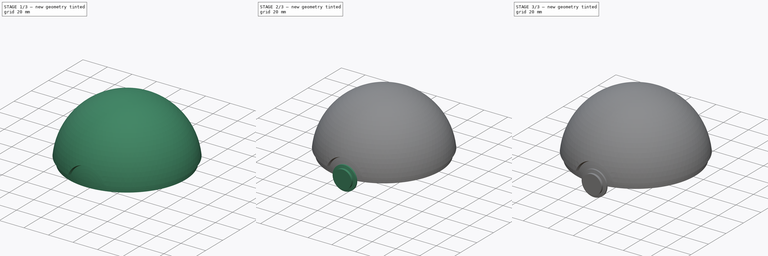
[diagram: build sequence overview — one tinted view per stage of 3, left to right]
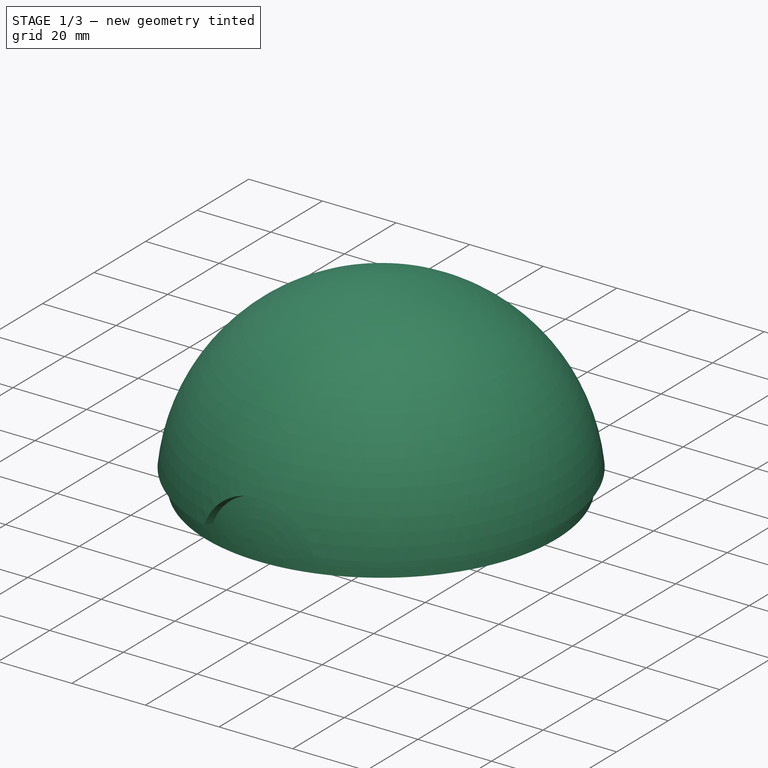
[diagram: stage 1 of 3 — iso view after this stage's code; geometry added in this stage tinted green]
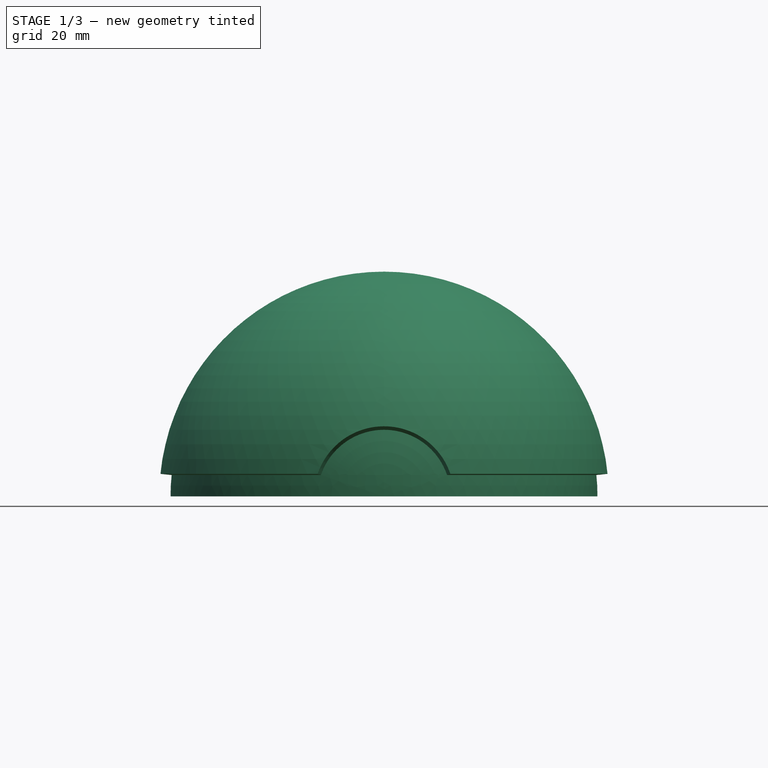
[diagram: stage 1 of 3 — front view after this stage's code; geometry added in this stage tinted green]
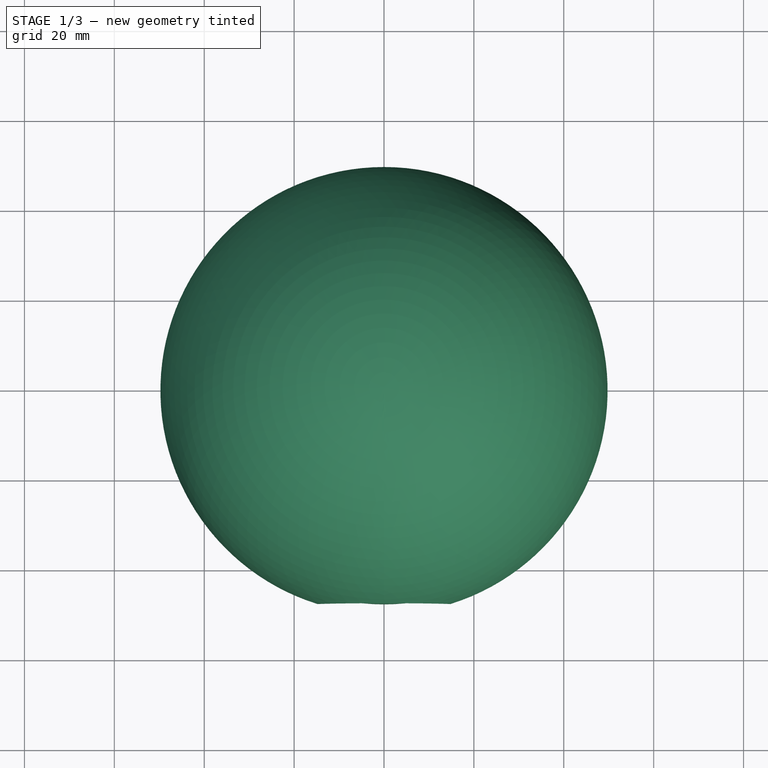
[diagram: stage 1 of 3 — top view after this stage's code; geometry added in this stage tinted green]
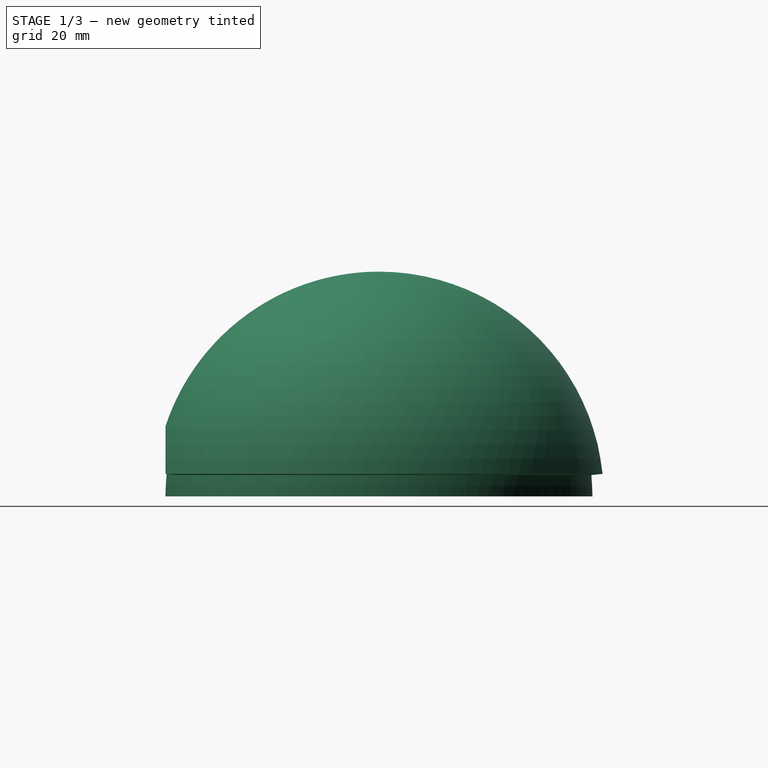
[diagram: stage 1 of 3 — right view after this stage's code; geometry added in this stage tinted green]
FCSTD DOCUMENT  (FreeCAD 0.20R29410 (Git))
Label: pokeball
License: All rights reserved
LicenseURL: http://en.wikipedia.org/wiki/All_rights_reserved
objects: Sketcher::SketchObject×5, PartDesign::Revolution×2, PartDesign::Pad×2, PartDesign::Groove×1, PartDesign::Body×1
note: 16 computed .brp shape members not serialized (recipe doc carries the construction recipe); baked Part::Feature solids carry a one-line shape summary decoded from their .brp

FEATURE [Sketcher::SketchObject] Sketch
  FullyConstrained = true
  MapMode = 5
  Placement = pos=(0,0,0) rot=(0.57735,0.57735,0.57735;2.0944rad)
  Support = -> [YZ_Plane]
  sketch-geometry (7):
    g0: ArcOfCircle CenterX=0 CenterY=0 CenterZ=0 NormalX=0 NormalY=0 NormalZ=1 AngleXU=0 Radius=50 StartAngle=1.5708 EndAngle=3.04143
    g1: ArcOfCircle CenterX=0 CenterY=0 CenterZ=0 NormalX=0 NormalY=0 NormalZ=1 AngleXU=0 Radius=45 StartAngle=1.5708 EndAngle=3.14159
    g2: ArcOfCircle CenterX=0 CenterY=0 CenterZ=0 NormalX=0 NormalY=0 NormalZ=1 AngleXU=0 Radius=47.5 StartAngle=3.04143 EndAngle=3.14159
    g3: LineSegment StartX=-45 StartY=5.8e-15 StartZ=0 EndX=-47.5 EndY=5.8e-15 EndZ=0
    g4: LineSegment StartX=-47.2619 StartY=4.75 StartZ=0 EndX=-49.7494 EndY=5 EndZ=0
    g5: LineSegment StartX=3.1e-15 StartY=50 StartZ=0 EndX=3.1e-15 EndY=45 EndZ=0
    g6: LineSegment StartX=0 StartY=0 StartZ=0 EndX=-49.7494 EndY=5 EndZ=0
  constraints (20):
    c: Coincident(g0,g-1)
    c: Diameter(g0) = 100
    c: Coincident(g1,g0)
    c: Diameter(g1) = 90
    c: Coincident(g2,g0)
    c: Diameter(g2) = 95
    c: DistanceY(g-1,g4) = 5
    c: Coincident(g0,g4)
    c: PointOnObject(g3,g-1)
    c: Horizontal(g3)
    c: Coincident(g4,g2)
    c: Vertical(g5)
    c: DistanceX(g5,g-1) = 0
    c: Coincident(g2,g3)
    c: Coincident(g1,g3)
    c: Coincident(g0,g5)
    c: Coincident(g1,g5)
    c: Coincident(g6,g0)
    c: Coincident(g6,g0)
    c: PointOnObject(g2,g6)
FEATURE [PartDesign::Revolution] Revolution
  Angle = 360
  Axis = (-2e-16,3e-16,1)
  Base = (0,0,0)
  Placement = pos=(0,0,0) rot=(0.57735,0.57735,0.57735;2.0944rad)
  Profile = -> Sketch
  ReferenceAxis = -> Sketch [V_Axis]
  Refine = true
FEATURE [Sketcher::SketchObject] Sketch001
  ExternalGeometry = -> [Revolution]
  FullyConstrained = true
  MapMode = 5
  Placement = pos=(0,0,0) rot=(0.57735,0.57735,0.57735;2.0944rad)
  Support = -> [YZ_Plane]
  sketch-geometry (4):
    g0: LineSegment StartX=-45.1316 StartY=14.8118 StartZ=0 EndX=-47.5074 EndY=15.59 EndZ=0
    g1: ArcOfCircle CenterX=0 CenterY=0 CenterZ=0 NormalX=0 NormalY=0 NormalZ=1 AngleXU=0 Radius=47.5 StartAngle=2.82448 EndAngle=3.14159
    g2: ArcOfCircle CenterX=0 CenterY=0 CenterZ=0 NormalX=0 NormalY=0 NormalZ=1 AngleXU=0 Radius=50 StartAngle=2.82451 EndAngle=3.14159
    g3: LineSegment StartX=-47.5 StartY=2.69e-14 StartZ=0 EndX=-50 EndY=6.1e-15 EndZ=0
  constraints (11):
    c: PointOnObject(g0,g-3)
    c: Coincident(g1,g-5)
    c: Coincident(g1,g-5)
    c: Distance(g1,g1) = 15
    c: Coincident(g2,g0)
    c: PointOnObject(g2,g-1)
    c: Coincident(g2,g-5)
    c: Coincident(g3,g1)
    c: Coincident(g3,g2)
    c: Coincident(g0,g1)
    c: DistanceY(g-1,g0) = 15.59
FEATURE [PartDesign::Groove] Groove
  Angle = 142.5
  Axis = (1e-16,1,-1e-16)
  Base = (0,0,0)
  BaseFeature = -> Revolution
  Midplane = true
  Placement = pos=(0,0,0) rot=(0.57735,0.57735,0.57735;2.0944rad)
  Profile = -> Sketch001
  ReferenceAxis = -> Y_Axis
  Refine = true
  Reversed = true
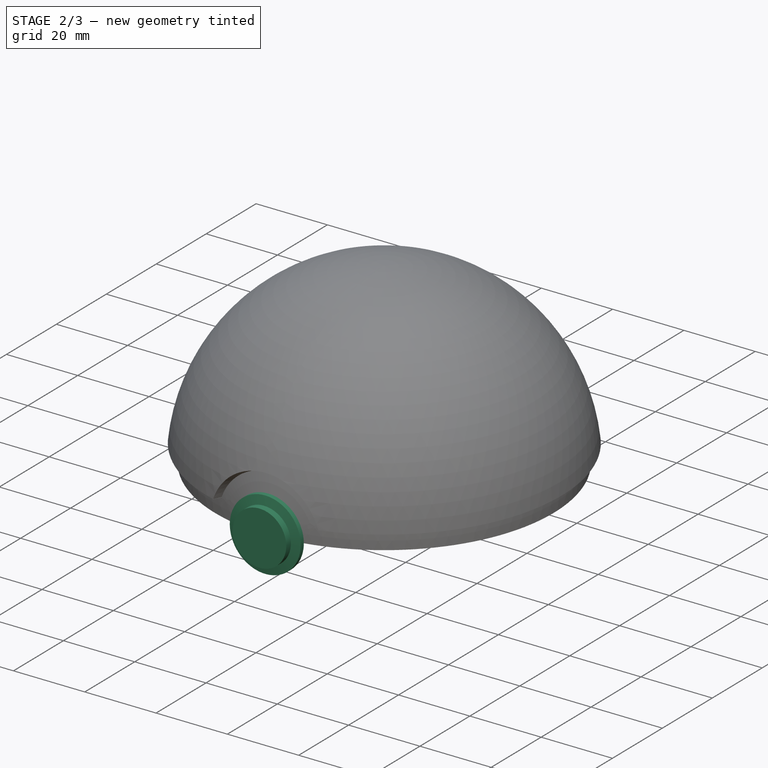
[diagram: stage 2 of 3 — iso view after this stage's code; geometry added in this stage tinted green]
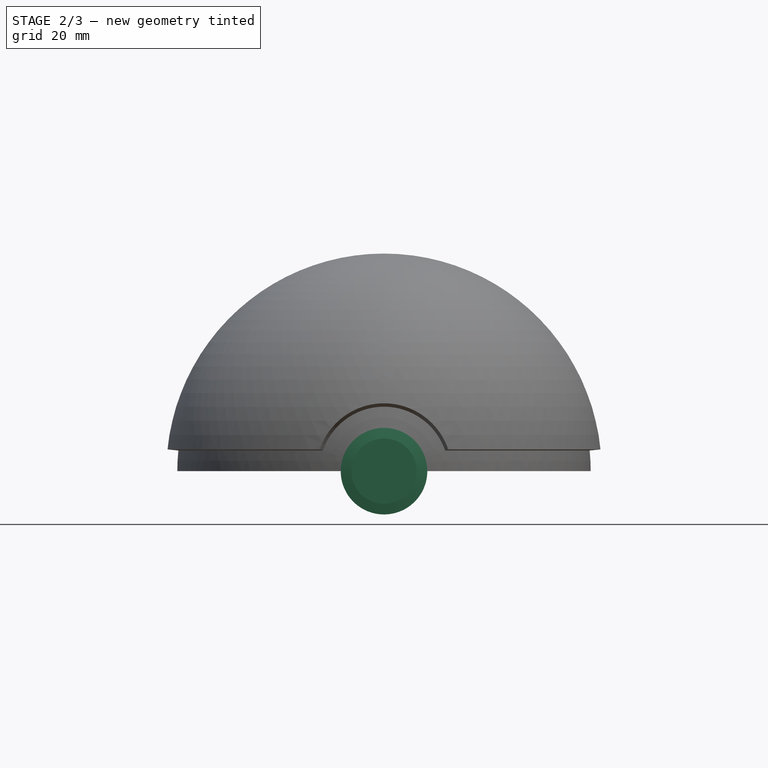
[diagram: stage 2 of 3 — front view after this stage's code; geometry added in this stage tinted green]
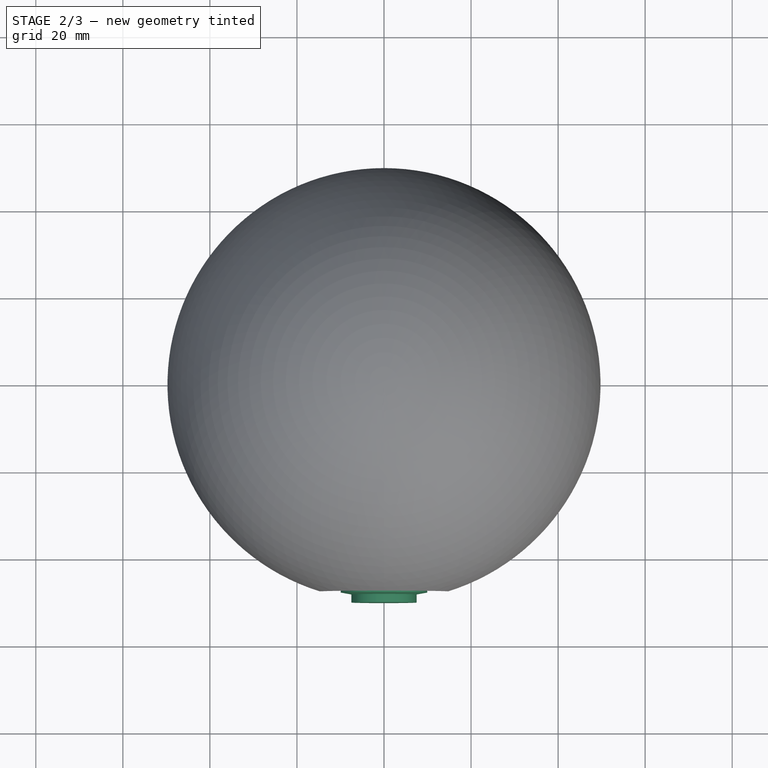
[diagram: stage 2 of 3 — top view after this stage's code; geometry added in this stage tinted green]
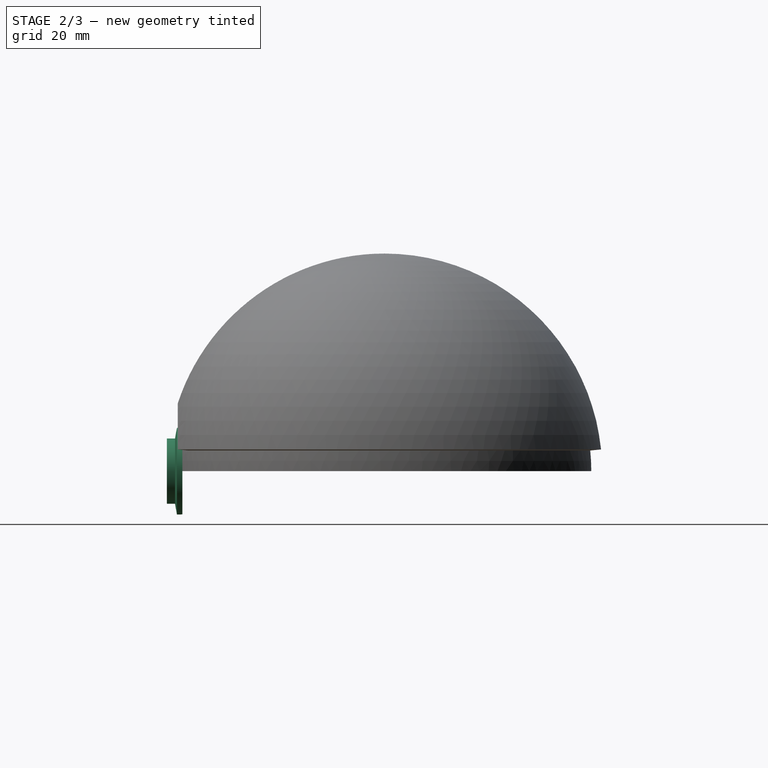
[diagram: stage 2 of 3 — right view after this stage's code; geometry added in this stage tinted green]
FEATURE [Sketcher::SketchObject] Sketch002
  ExternalGeometry = -> [Groove]
  FullyConstrained = true
  MapMode = 5
  Placement = pos=(0,0,0) rot=(0.57735,0.57735,0.57735;2.0944rad)
  Support = -> [YZ_Plane]
  sketch-geometry (6):
    g0: ArcOfCircle CenterX=0 CenterY=0 CenterZ=0 NormalX=0 NormalY=0 NormalZ=1 AngleXU=0 Radius=47.5 StartAngle=2.93068 EndAngle=3.14159
    g1: LineSegment StartX=-47.5 StartY=-1.53e-14 StartZ=0 EndX=-50 EndY=0 EndZ=0
    g2: LineSegment StartX=-46.4474 StartY=9.94444 StartZ=0 EndX=-47.6974 EndY=9.94444 EndZ=0
    g3: ArcOfCircle CenterX=0 CenterY=0 CenterZ=0 NormalX=0 NormalY=0 NormalZ=1 AngleXU=0 Radius=48.723 StartAngle=2.93605 EndAngle=2.98705
    g4: LineSegment StartX=-48.1423 StartY=7.5 StartZ=0 EndX=-50 EndY=7.5 EndZ=0
    g5: LineSegment StartX=-50 StartY=7.5 StartZ=0 EndX=-50 EndY=0 EndZ=0
  constraints (17):
    c: Coincident(g0,g-3)
    c: Coincident(g0,g-3)
    c: Distance(g0,g0) = 10
    c: Coincident(g1,g0)
    c: PointOnObject(g1,g-1)
    c: Coincident(g2,g0)
    c: Horizontal(g2)
    c: DistanceX(g2,g0) = 1.25
    c: DistanceX(g1,g0) = 2.5
    c: Coincident(g3,g2)
    c: Coincident(g3,g0)
    c: Horizontal(g4)
    c: Coincident(g5,g4)
    c: Coincident(g5,g1)
    c: Vertical(g5)
    c: DistanceY(g1,g4) = 7.5
    c: Coincident(g3,g4)
FEATURE [PartDesign::Revolution] Revolution001
  Angle = 360
  Axis = (1e-16,1,-1e-16)
  Base = (0,0,0)
  BaseFeature = -> Groove
  Placement = pos=(0,0,0) rot=(0.57735,0.57735,0.57735;2.0944rad)
  Profile = -> Sketch002
  ReferenceAxis = -> Y_Axis
  Refine = true
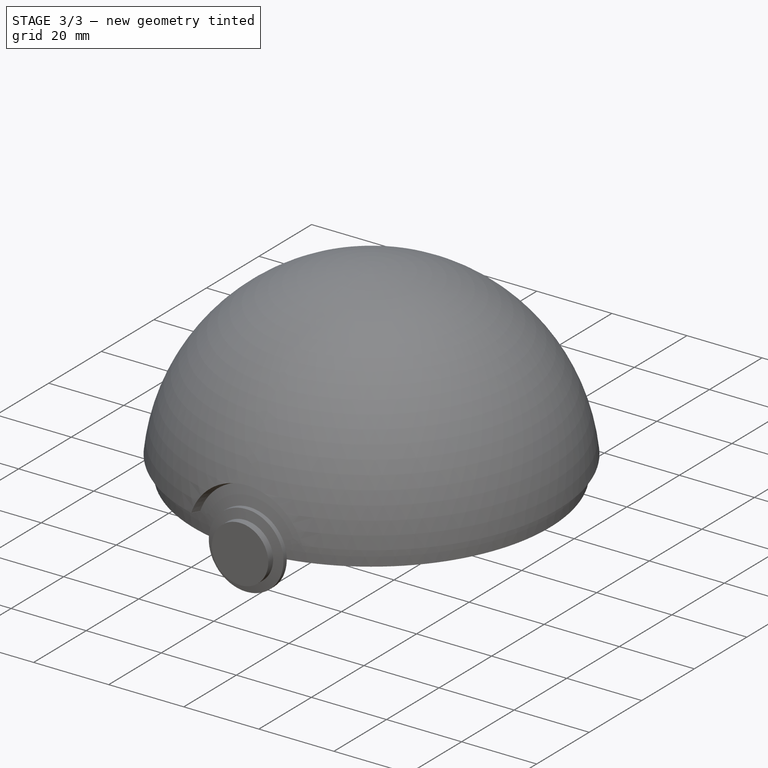
[diagram: stage 3 of 3 — iso view after this stage's code; geometry added in this stage tinted green]
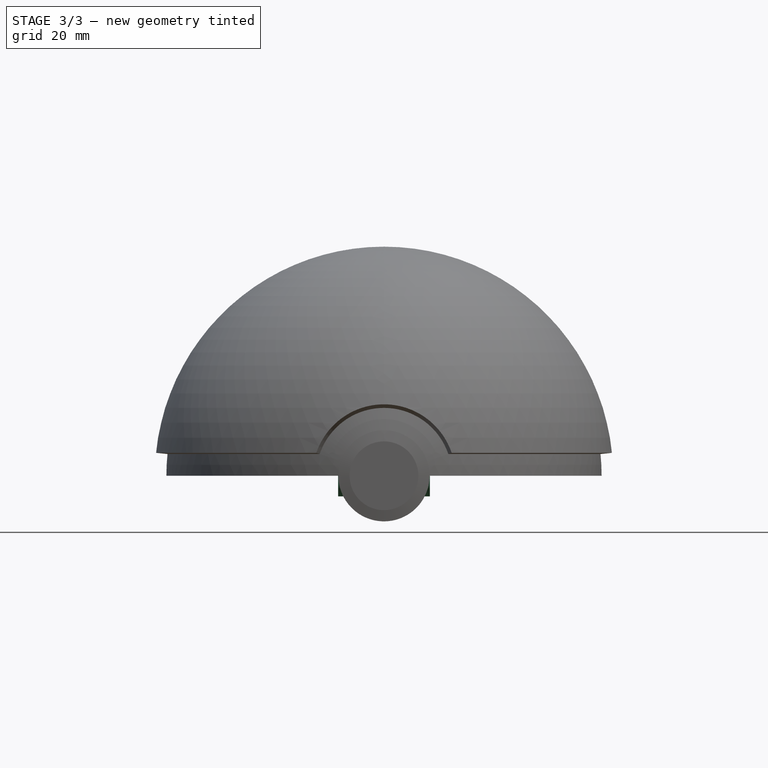
[diagram: stage 3 of 3 — front view after this stage's code; geometry added in this stage tinted green]
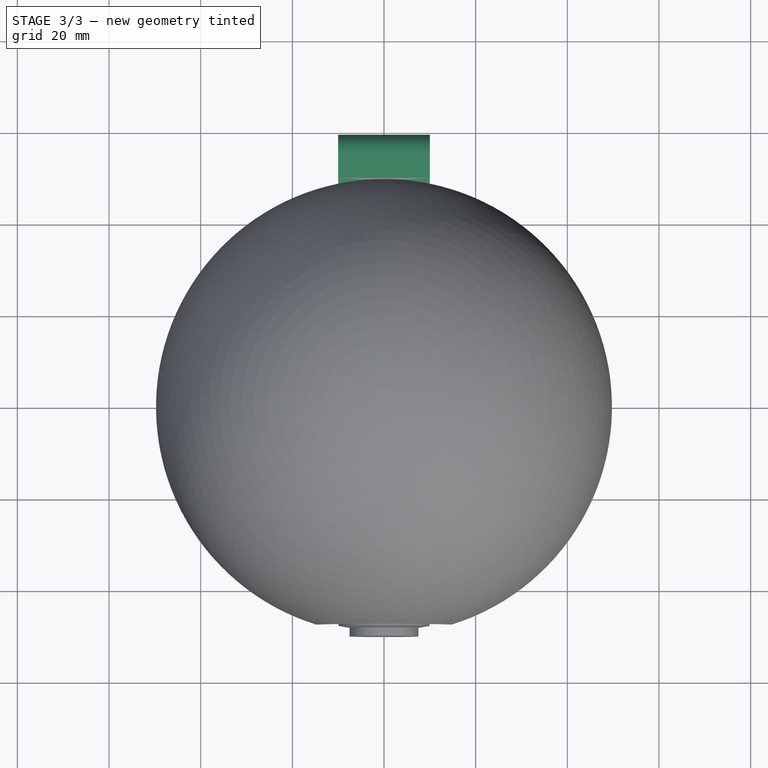
[diagram: stage 3 of 3 — top view after this stage's code; geometry added in this stage tinted green]
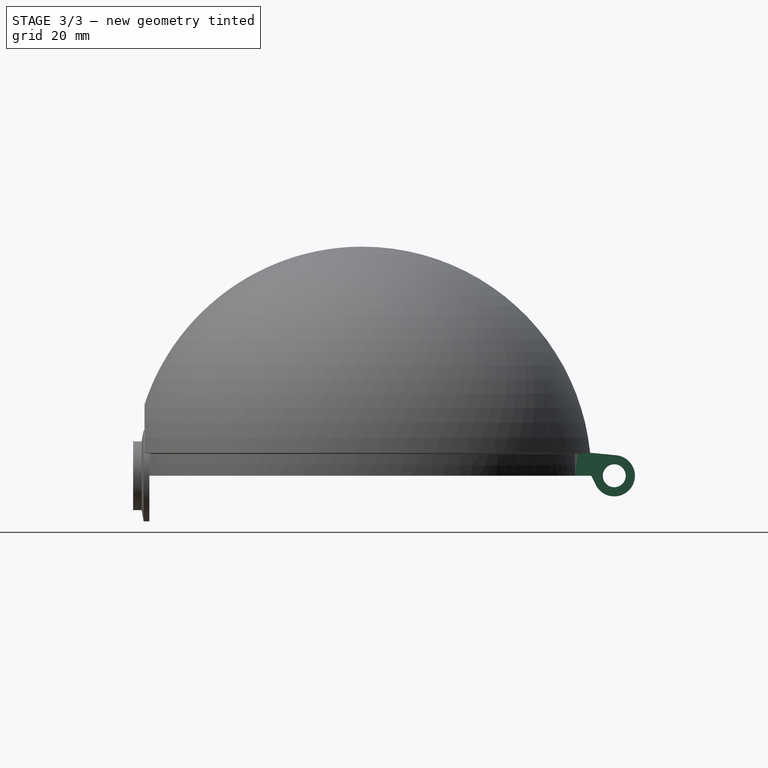
[diagram: stage 3 of 3 — right view after this stage's code; geometry added in this stage tinted green]
FEATURE [Sketcher::SketchObject] Sketch003
  ExternalGeometry = -> [Revolution001]
  FullyConstrained = true
  MapMode = 5
  Support = -> [XY_Plane]
  sketch-geometry (4):
    g0: LineSegment StartX=9.9788 StartY=46.44 StartZ=0 EndX=9.9788 EndY=50 EndZ=0
    g1: LineSegment StartX=-9.9788 StartY=46.44 StartZ=0 EndX=-9.9788 EndY=50 EndZ=0
    g2: LineSegment StartX=-9.9788 StartY=50 StartZ=0 EndX=9.9788 EndY=50 EndZ=0
    g3: ArcOfCircle CenterX=0 CenterY=0 CenterZ=0 NormalX=0 NormalY=0 NormalZ=1 AngleXU=0 Radius=47.5 StartAngle=1.35914 EndAngle=1.78245
  constraints (12):
    c: Vertical(g0)
    c: PointOnObject(g2,g1)
    c: Coincident(g2,g0)
    c: Horizontal(g2)
    c: Symmetric(g0,g1,g-2)
    c: DistanceY(g0,g0) = 3.56
    c: Coincident(g3,g1)
    c: Coincident(g3,g0)
    c: DistanceY(g3,g0) = 50
    c: Coincident(g3,g-1)
    c: Vertical(g1)
    c: PointOnObject(g0,g-3)
FEATURE [PartDesign::Pad] Pad
  BaseFeature = -> Revolution001
  Direction = (0,0,1)
  Length = 5
  Length2 = 10
  Placement = pos=(0,0,0) rot=(0.57735,0.57735,0.57735;2.0944rad)
  Profile = -> Sketch003
  ReferenceAxis = -> Sketch003 [N_Axis]
  Refine = true
  Type = 0
FEATURE [Sketcher::SketchObject] Sketch004
  FullyConstrained = true
  MapMode = 5
  Placement = pos=(0,0,0) rot=(0.57735,0.57735,0.57735;2.0944rad)
  Support = -> [YZ_Plane]
  sketch-geometry (6):
    g0: LineSegment StartX=50 StartY=0 StartZ=0 EndX=50 EndY=5 EndZ=0
    g1: Circle CenterX=55 CenterY=0 CenterZ=0 NormalX=0 NormalY=0 NormalZ=1 AngleXU=0 Radius=2.5
    g2: ArcOfCircle CenterX=55 CenterY=0 CenterZ=0 NormalX=0 NormalY=0 NormalZ=1 AngleXU=0 Radius=4.5 StartAngle=3.59262 EndAngle=7.7584
    g3: LineSegment StartX=55.4295 StartY=4.47946 StartZ=0 EndX=50 EndY=5 EndZ=0
    g4: LineSegment StartX=50.95 StartY=-1.9615 StartZ=0 EndX=50 EndY=0 EndZ=0
    g5: LineSegment StartX=57.5 StartY=1.2e-15 StartZ=0 EndX=59.5 EndY=1.2e-15 EndZ=0
  constraints (17):
    c: PointOnObject(g0,g-1)
    c: Vertical(g0)
    c: PointOnObject(g1,g-1)
    c: Diameter(g1) = 5
    c: DistanceX(g0,g1) = 5
    c: DistanceX(g-1,g0) = 50
    c: Coincident(g2,g1)
    c: Coincident(g3,g0)
    c: Tangent(g3,g2) = -1.5708
    c: Coincident(g4,g0)
    c: Tangent(g4,g2) = 1.5708
    c: DistanceY(g0,g0) = 5
    c: PointOnObject(g5,g1)
    c: PointOnObject(g5,g2)
    c: Horizontal(g5)
    c: DistanceX(g5,g5) = 2
    c: PointOnObject(g5,g-1)
FEATURE [PartDesign::Pad] Pad001
  BaseFeature = -> Pad
  Direction = (1,-2e-16,3e-16)
  Length = 20
  Length2 = 10
  Midplane = true
  Placement = pos=(0,0,0) rot=(0.57735,0.57735,0.57735;2.0944rad)
  Profile = -> Sketch004
  ReferenceAxis = -> Sketch004 [N_Axis]
  Refine = true
  Type = 0
FEATURE [PartDesign::Body] Body
  Group = -> [Sketch,Revolution,Sketch001,Groove,Sketch002,Revolution001,Sketch003,Pad,Sketch004,Pad001]
  Origin = -> Origin
  Tip = -> Pad001
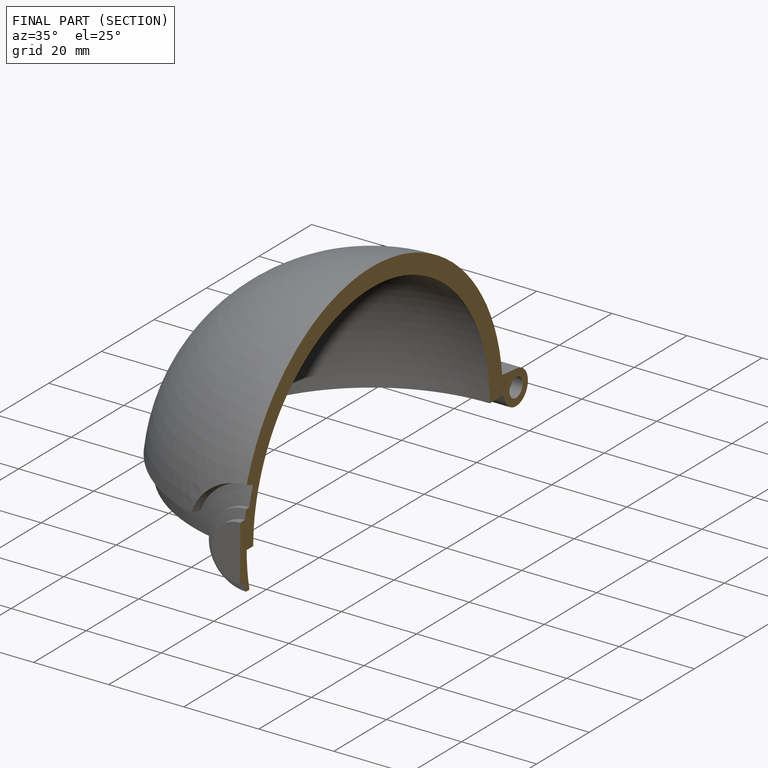
[diagram: finished part — half-section view (interior)]
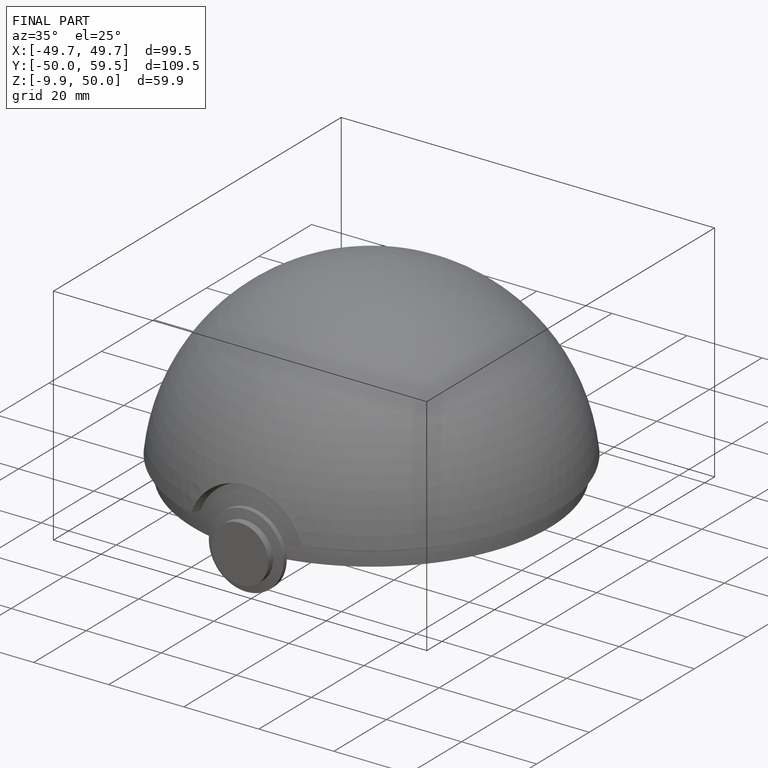
[diagram: finished part — iso view with bounding-box wireframe]
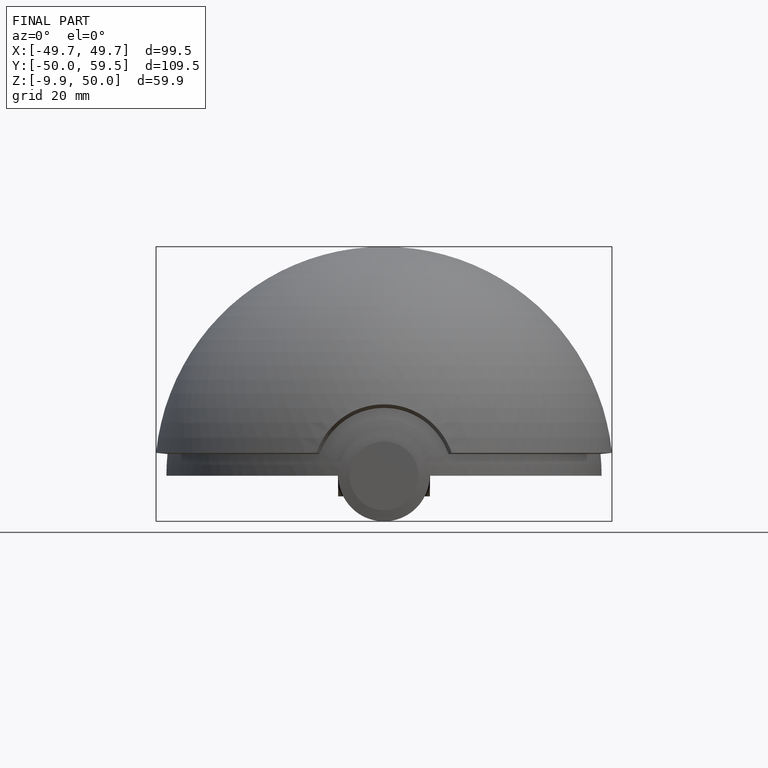
[diagram: finished part — front view with bounding-box wireframe]
